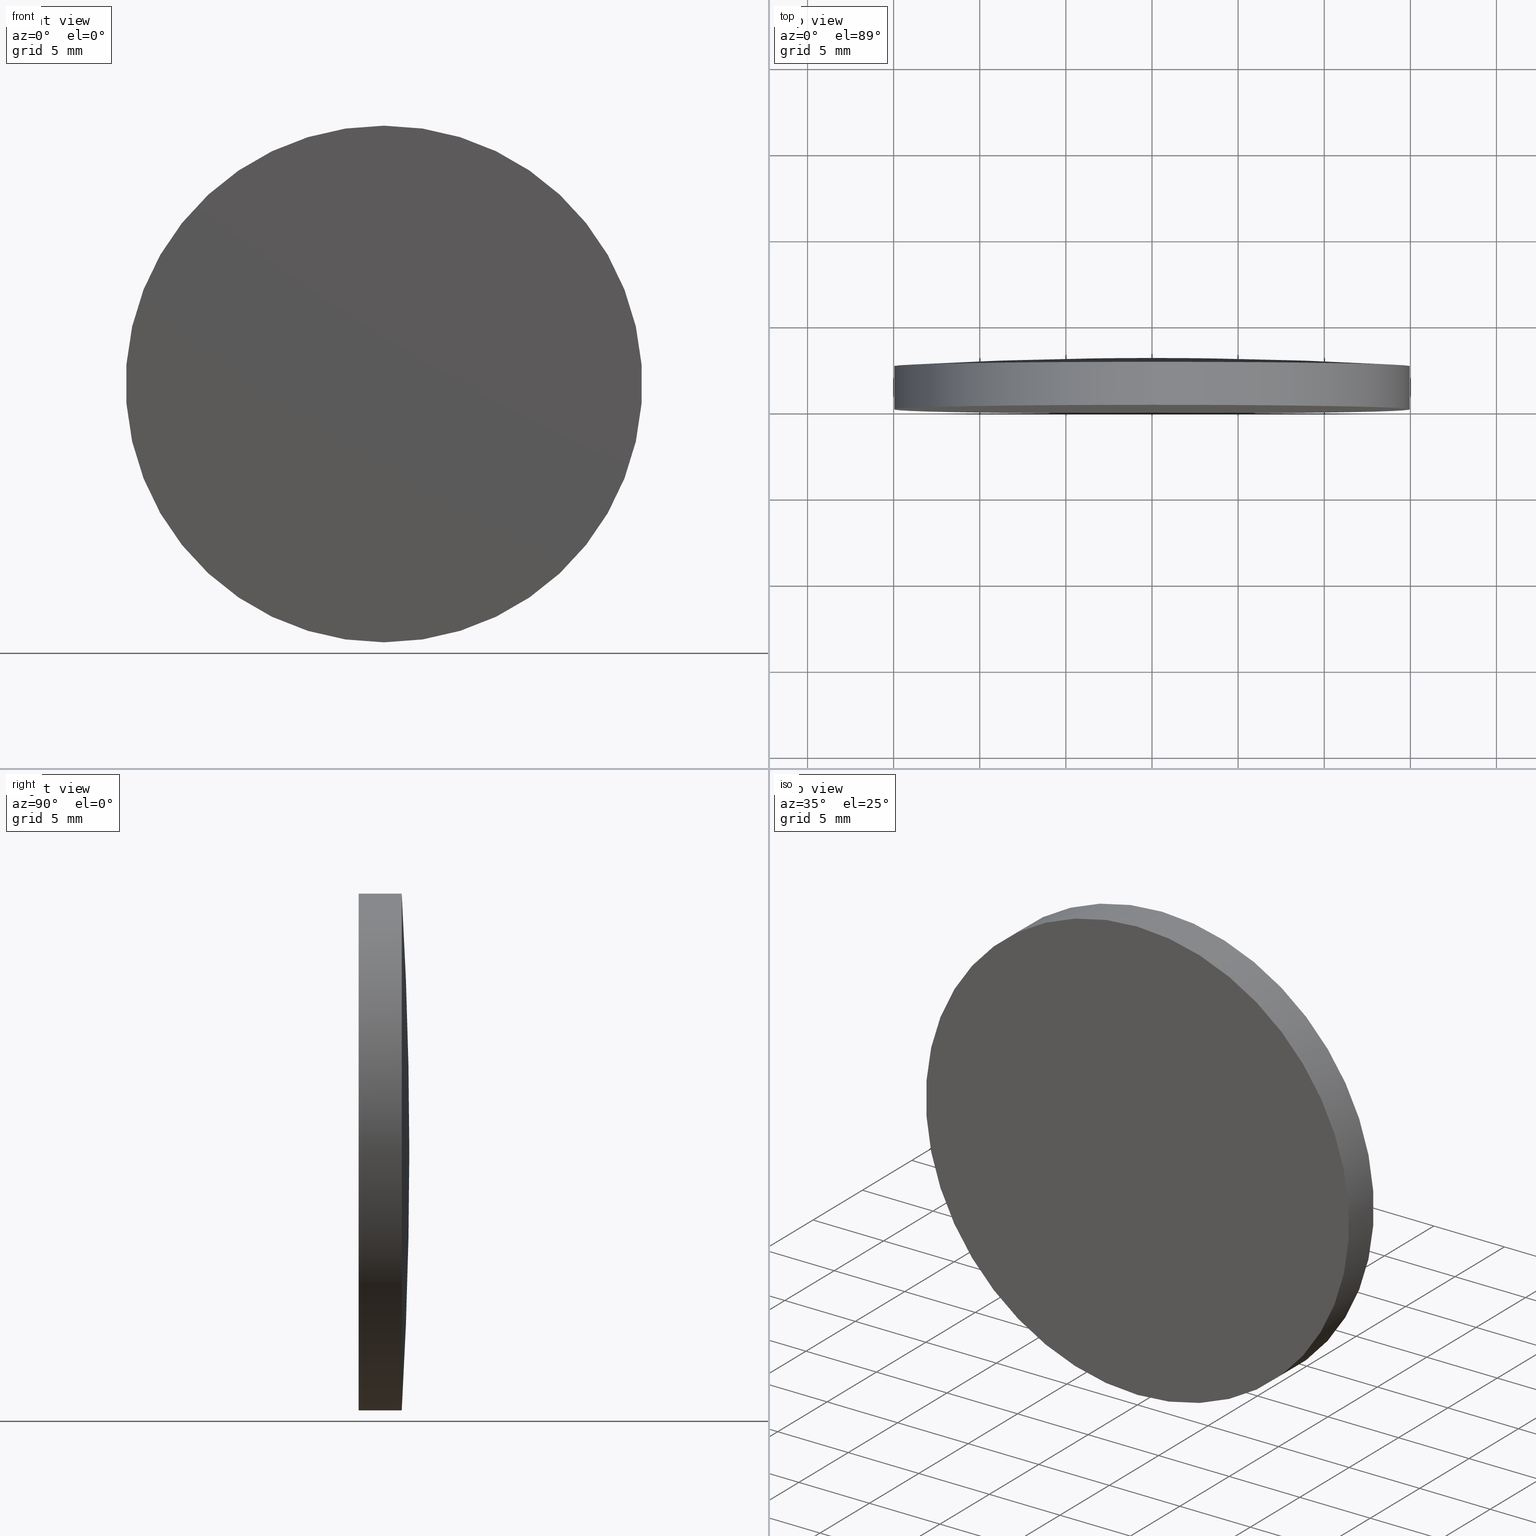
[diagram: canonical four-view strip — front | top / right | iso, engineering-drawing reading convention]
A machine part, canonical four-view strip (front | top / right | iso — engineering-drawing reading convention). The complete STEP part file that produces these views, byte-faithful:
ISO-10303-21;
HEADER;
FILE_DESCRIPTION (( 'STEP AP203' ),
    '1' );
FILE_NAME ('100603.STEP',
    '2024-05-10T02:37:21',
    ( '' ),
    ( '' ),
    'SwSTEP 2.0',
    'SolidWorks 2020',
    '' );
FILE_SCHEMA (( 'CONFIG_CONTROL_DESIGN' ));
ENDSEC;

DATA;
#1 = MECHANICAL_CONTEXT ( 'NONE', #80, 'mechanical' ) ;
#2 = SECURITY_CLASSIFICATION_LEVEL ( 'unclassified' ) ;
#3 = CC_DESIGN_APPROVAL ( #105, ( #161 ) ) ;
#4 = PERSON_AND_ORGANIZATION_ROLE ( 'creator' ) ;
#5 = EDGE_CURVE ( 'NONE', #180, #55, #158, .T. ) ;
#6 = ADVANCED_FACE ( 'NONE', ( #127 ), #183, .T. ) ;
#7 = PRODUCT_DEFINITION_FORMATION_WITH_SPECIFIED_SOURCE ( '�κ�', '', #194, .NOT_KNOWN. ) ;
#8 = DIRECTION ( 'NONE',  ( 0.000000000000000000, 0.000000000000000000, 1.000000000000000000 ) ) ;
#9 = MANIFOLD_SOLID_BREP ( '��ת1', #85 ) ;
#10 = DIRECTION ( 'NONE',  ( -0.000000000000000000, 1.000000000000000000, -0.000000000000000000 ) ) ;
#11 = ORIENTED_EDGE ( 'NONE', *, *, #145, .T. ) ;
#12 = AXIS2_PLACEMENT_3D ( 'NONE', #119, #14, #164 ) ;
#13 = ORIENTED_EDGE ( 'NONE', *, *, #75, .T. ) ;
#14 = DIRECTION ( 'NONE',  ( -0.000000000000000000, 1.000000000000000000, -0.000000000000000000 ) ) ;
#15 = LINE ( 'NONE', #26, #63 ) ;
#16 = PERSON_AND_ORGANIZATION ( #97, #95 ) ;
#17 = CALENDAR_DATE ( 2024, 10, 5 ) ;
#18 = EDGE_CURVE ( 'NONE', #197, #40, #129, .T. ) ;
#19 = COORDINATED_UNIVERSAL_TIME_OFFSET ( 8, 0, .AHEAD. ) ;
#20 = PERSON_AND_ORGANIZATION_ROLE ( 'design_supplier' ) ;
#21 = PERSON_AND_ORGANIZATION ( #97, #95 ) ;
#22 = TOROIDAL_SURFACE ( 'NONE', #59, -0.06682641297565267147, 258.1800000000000068 ) ;
#23 = FACE_OUTER_BOUND ( 'NONE', #107, .T. ) ;
#24 = CIRCLE ( 'NONE', #12, 15.00000000000000000 ) ;
#25 = PLANE ( 'NONE',  #151 ) ;
#26 = CARTESIAN_POINT ( 'NONE',  ( 1.836970198721029589E-15, 2.939999999999999947, -15.00000000000000000 ) ) ;
#27 = CC_DESIGN_PERSON_AND_ORGANIZATION_ASSIGNMENT ( #187, #4, ( #7 ) ) ;
#28 = ORIENTED_EDGE ( 'NONE', *, *, #5, .F. ) ;
#29 = LOCAL_TIME ( 10, 37, 21.00000000000000000, #33 ) ;
#30 = DATE_AND_TIME ( #76, #29 ) ;
#31 = APPROVAL_STATUS ( 'not_yet_approved' ) ;
#32 = SHAPE_DEFINITION_REPRESENTATION ( #172, #173 ) ;
#33 = COORDINATED_UNIVERSAL_TIME_OFFSET ( 8, 0, .AHEAD. ) ;
#34 = CIRCLE ( 'NONE', #77, 15.00000000000000000 ) ;
#35 = PRODUCT_RELATED_PRODUCT_CATEGORY ( 'detail', '', ( #194 ) ) ;
#36 = CARTESIAN_POINT ( 'NONE',  ( 0.000000000000000000, -9.184850993605147944E-16, 0.000000000000000000 ) ) ;
#37 = CC_DESIGN_PERSON_AND_ORGANIZATION_ASSIGNMENT ( #21, #60, ( #43 ) ) ;
#38 = CARTESIAN_POINT ( 'NONE',  ( 1.836970198721009473E-15, 2.500000000000028422, -14.99999999999983302 ) ) ;
#39 = ORIENTED_EDGE ( 'NONE', *, *, #124, .T. ) ;
#40 = VERTEX_POINT ( 'NONE', #65 ) ;
#41 = CARTESIAN_POINT ( 'NONE',  ( 0.000000000000000000, 2.939999999999999947, 0.000000000000000000 ) ) ;
#42 = LINE ( 'NONE', #66, #170 ) ;
#43 = SECURITY_CLASSIFICATION ( '', '', #2 ) ;
#44 = COORDINATED_UNIVERSAL_TIME_OFFSET ( 8, 0, .AHEAD. ) ;
#45 = CALENDAR_DATE ( 2024, 10, 5 ) ;
#46 = EDGE_CURVE ( 'NONE', #67, #180, #24, .T. ) ;
#47 = APPROVAL_ROLE ( '' ) ;
#48 = LOCAL_TIME ( 10, 37, 21.00000000000000000, #115 ) ;
#49 = APPLICATION_CONTEXT ( 'configuration controlled 3d designs of mechanical parts and assemblies' ) ;
#50 = CC_DESIGN_DATE_AND_TIME_ASSIGNMENT ( #169, #116, ( #161 ) ) ;
#51 = DIRECTION ( 'NONE',  ( -0.000000000000000000, 1.000000000000000000, -0.000000000000000000 ) ) ;
#52 = DIRECTION ( 'NONE',  ( 0.000000000000000000, 0.000000000000000000, 1.000000000000000000 ) ) ;
#53 = DIRECTION ( 'NONE',  ( -0.000000000000000000, 1.000000000000000000, -0.000000000000000000 ) ) ;
#54 = CC_DESIGN_SECURITY_CLASSIFICATION ( #43, ( #7 ) ) ;
#55 = VERTEX_POINT ( 'NONE', #165 ) ;
#56 = AXIS2_PLACEMENT_3D ( 'NONE', #71, #83, #176 ) ;
#57 = DIRECTION ( 'NONE',  ( 1.224646799147353207E-16, 0.000000000000000000, -1.000000000000000000 ) ) ;
#58 = APPROVAL_STATUS ( 'not_yet_approved' ) ;
#59 = AXIS2_PLACEMENT_3D ( 'NONE', #182, #51, #73 ) ;
#60 = PERSON_AND_ORGANIZATION_ROLE ( 'classification_officer' ) ;
#61 = DATE_AND_TIME ( #17, #188 ) ;
#62 = DATE_AND_TIME ( #112, #106 ) ;
#63 = VECTOR ( 'NONE', #136, 1000.000000000000000 ) ;
#64 = CC_DESIGN_DATE_AND_TIME_ASSIGNMENT ( #174, #96, ( #43 ) ) ;
#65 = CARTESIAN_POINT ( 'NONE',  ( 0.000000000000000000, -1.734723475976807094E-15, 15.00000000000000000 ) ) ;
#66 = CARTESIAN_POINT ( 'NONE',  ( 0.000000000000000000, 2.939999999999999947, 15.00000000000000000 ) ) ;
#67 = VERTEX_POINT ( 'NONE', #191 ) ;
#68 = EDGE_LOOP ( 'NONE', ( #123, #90 ) ) ;
#69 = ADVANCED_FACE ( 'NONE', ( #155 ), #184, .T. ) ;
#70 = CC_DESIGN_PERSON_AND_ORGANIZATION_ASSIGNMENT ( #141, #160, ( #194 ) ) ;
#71 = CARTESIAN_POINT ( 'NONE',  ( 0.000000000000000000, 2.499999999999998224, 0.000000000000000000 ) ) ;
#72 = AXIS2_PLACEMENT_3D ( 'NONE', #74, #53, #135 ) ;
#73 = DIRECTION ( 'NONE',  ( 0.000000000000000000, 0.000000000000000000, 1.000000000000000000 ) ) ;
#74 = CARTESIAN_POINT ( 'NONE',  ( 0.000000000000000000, 2.939999999999999947, 0.000000000000000000 ) ) ;
#75 = EDGE_CURVE ( 'NONE', #40, #197, #34, .T. ) ;
#76 = CALENDAR_DATE ( 2024, 10, 5 ) ;
#77 = AXIS2_PLACEMENT_3D ( 'NONE', #102, #92, #52 ) ;
#78 = APPROVAL_DATE_TIME ( #61, #190 ) ;
#79 = PERSON_AND_ORGANIZATION ( #97, #95 ) ;
#80 = APPLICATION_CONTEXT ( 'configuration controlled 3d designs of mechanical parts and assemblies' ) ;
#81 = APPROVAL_PERSON_ORGANIZATION ( #16, #105, #47 ) ;
#82 = DIRECTION ( 'NONE',  ( -0.000000000000000000, 1.000000000000000000, -0.000000000000000000 ) ) ;
#83 = DIRECTION ( 'NONE',  ( -0.000000000000000000, 1.000000000000000000, -0.000000000000000000 ) ) ;
#84 = ORIENTED_EDGE ( 'NONE', *, *, #5, .T. ) ;
#85 = CLOSED_SHELL ( 'NONE', ( #69, #185, #181, #99, #6 ) ) ;
#86 = EDGE_CURVE ( 'NONE', #67, #55, #91, .T. ) ;
#87 = EDGE_LOOP ( 'NONE', ( #13, #11, #166, #125 ) ) ;
#88 = EDGE_CURVE ( 'NONE', #40, #67, #42, .T. ) ;
#89 = DIRECTION ( 'NONE',  ( 0.000000000000000000, -1.000000000000000000, 0.000000000000000000 ) ) ;
#90 = ORIENTED_EDGE ( 'NONE', *, *, #18, .F. ) ;
#91 = CIRCLE ( 'NONE', #111, 258.1800000000000068 ) ;
#92 = DIRECTION ( 'NONE',  ( -0.000000000000000000, 1.000000000000000000, -0.000000000000000000 ) ) ;
#93 = PERSON_AND_ORGANIZATION_ROLE ( 'creator' ) ;
#94 = DIRECTION ( 'NONE',  ( 1.000000000000000000, 0.000000000000000000, 0.000000000000000000 ) ) ;
#95 = ORGANIZATION ( 'δָ��', 'δָ��', '' ) ;
#96 = DATE_TIME_ROLE ( 'classification_date' ) ;
#97 = PERSON ( 'δָ��', 'δָ��', 'δָ��', ('δָ��'), ('δָ��'), ('δָ��') ) ;
#98 = APPROVAL_ROLE ( '' ) ;
#99 = ADVANCED_FACE ( 'NONE', ( #175 ), #25, .T. ) ;
#100 = AXIS2_PLACEMENT_3D ( 'NONE', #147, #109, #126 ) ;
#101 = FACE_OUTER_BOUND ( 'NONE', #108, .T. ) ;
#102 = CARTESIAN_POINT ( 'NONE',  ( 0.000000000000000000, -1.734723475976807094E-15, 0.000000000000000000 ) ) ;
#103 = UNCERTAINTY_MEASURE_WITH_UNIT (LENGTH_MEASURE( 1.000000000000000082E-05 ), #178, 'distance_accuracy_value', 'NONE');
#104 = ORIENTED_EDGE ( 'NONE', *, *, #88, .T. ) ;
#105 = APPROVAL ( #159, 'δָ��' ) ;
#106 = LOCAL_TIME ( 10, 37, 21.00000000000000000, #44 ) ;
#107 = EDGE_LOOP ( 'NONE', ( #28, #39, #196 ) ) ;
#108 = EDGE_LOOP ( 'NONE', ( #179, #84, #195 ) ) ;
#109 = DIRECTION ( 'NONE',  ( -0.000000000000000000, 1.000000000000000000, -0.000000000000000000 ) ) ;
#110 = CARTESIAN_POINT ( 'NONE',  ( -8.183875274913219801E-18, -255.2399913514417733, 0.06682641297565267147 ) ) ;
#111 = AXIS2_PLACEMENT_3D ( 'NONE', #140, #120, #148 ) ;
#112 = CALENDAR_DATE ( 2024, 10, 5 ) ;
#113 = APPLICATION_PROTOCOL_DEFINITION ( 'international standard', 'config_control_design', 1994, #49 ) ;
#114 = AXIS2_PLACEMENT_3D ( 'NONE', #199, #201, #192 ) ;
#115 = COORDINATED_UNIVERSAL_TIME_OFFSET ( 8, 0, .AHEAD. ) ;
#116 = DATE_TIME_ROLE ( 'creation_date' ) ;
#117 = CC_DESIGN_PERSON_AND_ORGANIZATION_ASSIGNMENT ( #157, #20, ( #7 ) ) ;
#118 = LOCAL_TIME ( 10, 37, 21.00000000000000000, #130 ) ;
#119 = CARTESIAN_POINT ( 'NONE',  ( 0.000000000000000000, 2.499999999999998224, 0.000000000000000000 ) ) ;
#120 = DIRECTION ( 'NONE',  ( -1.000000000000000000, 0.000000000000000000, 0.000000000000000000 ) ) ;
#121 = AXIS2_PLACEMENT_3D ( 'NONE', #110, #200, #57 ) ;
#122 = CARTESIAN_POINT ( 'NONE',  ( 1.836970198721029589E-15, -1.734723475976807094E-15, -15.00000000000000000 ) ) ;
#123 = ORIENTED_EDGE ( 'NONE', *, *, #75, .F. ) ;
#124 = EDGE_CURVE ( 'NONE', #180, #67, #198, .T. ) ;
#125 = ORIENTED_EDGE ( 'NONE', *, *, #88, .F. ) ;
#126 = DIRECTION ( 'NONE',  ( 0.000000000000000000, 0.000000000000000000, 1.000000000000000000 ) ) ;
#127 = FACE_OUTER_BOUND ( 'NONE', #137, .T. ) ;
#128 = APPROVAL_DATE_TIME ( #30, #105 ) ;
#129 = CIRCLE ( 'NONE', #100, 15.00000000000000000 ) ;
#130 = COORDINATED_UNIVERSAL_TIME_OFFSET ( 8, 0, .AHEAD. ) ;
#131 = DIRECTION ( 'NONE',  ( 0.000000000000000000, 0.000000000000000000, 1.000000000000000000 ) ) ;
#132 =( GEOMETRIC_REPRESENTATION_CONTEXT ( 3 ) GLOBAL_UNCERTAINTY_ASSIGNED_CONTEXT ( ( #103 ) ) GLOBAL_UNIT_ASSIGNED_CONTEXT ( ( #178, #152, #153 ) ) REPRESENTATION_CONTEXT ( 'NONE', 'WORKASPACE' ) );
#133 = APPROVAL_PERSON_ORGANIZATION ( #168, #190, #98 ) ;
#134 = CC_DESIGN_PERSON_AND_ORGANIZATION_ASSIGNMENT ( #156, #93, ( #161 ) ) ;
#135 = DIRECTION ( 'NONE',  ( 0.000000000000000000, 0.000000000000000000, 1.000000000000000000 ) ) ;
#136 = DIRECTION ( 'NONE',  ( -0.000000000000000000, 1.000000000000000000, -0.000000000000000000 ) ) ;
#137 = EDGE_LOOP ( 'NONE', ( #139, #138, #104, #193 ) ) ;
#138 = ORIENTED_EDGE ( 'NONE', *, *, #18, .T. ) ;
#139 = ORIENTED_EDGE ( 'NONE', *, *, #145, .F. ) ;
#140 = CARTESIAN_POINT ( 'NONE',  ( 0.000000000000000000, -255.2399913514417733, -0.06682641297565267147 ) ) ;
#141 = PERSON_AND_ORGANIZATION ( #97, #95 ) ;
#142 = CALENDAR_DATE ( 2024, 10, 5 ) ;
#143 = APPROVAL_DATE_TIME ( #62, #149 ) ;
#144 = CC_DESIGN_APPROVAL ( #190, ( #43 ) ) ;
#145 = EDGE_CURVE ( 'NONE', #197, #180, #15, .T. ) ;
#146 = AXIS2_PLACEMENT_3D ( 'NONE', #41, #82, #8 ) ;
#147 = CARTESIAN_POINT ( 'NONE',  ( 0.000000000000000000, -1.734723475976807094E-15, 0.000000000000000000 ) ) ;
#148 = DIRECTION ( 'NONE',  ( 0.000000000000000000, 0.000000000000000000, 1.000000000000000000 ) ) ;
#149 = APPROVAL ( #58, 'δָ��' ) ;
#150 = DESIGN_CONTEXT ( 'detailed design', #49, 'design' ) ;
#151 = AXIS2_PLACEMENT_3D ( 'NONE', #36, #89, #162 ) ;
#152 =( NAMED_UNIT ( * ) PLANE_ANGLE_UNIT ( ) SI_UNIT ( $, .RADIAN. ) );
#153 =( NAMED_UNIT ( * ) SI_UNIT ( $, .STERADIAN. ) SOLID_ANGLE_UNIT ( ) );
#154 = AXIS2_PLACEMENT_3D ( 'NONE', #189, #131, #94 ) ;
#155 = FACE_OUTER_BOUND ( 'NONE', #87, .T. ) ;
#156 = PERSON_AND_ORGANIZATION ( #97, #95 ) ;
#157 = PERSON_AND_ORGANIZATION ( #97, #95 ) ;
#158 = CIRCLE ( 'NONE', #121, 258.1800000000000068 ) ;
#159 = APPROVAL_STATUS ( 'not_yet_approved' ) ;
#160 = PERSON_AND_ORGANIZATION_ROLE ( 'design_owner' ) ;
#161 = PRODUCT_DEFINITION ( 'δ֪', '', #7, #150 ) ;
#162 = DIRECTION ( 'NONE',  ( 0.000000000000000000, -0.000000000000000000, -1.000000000000000000 ) ) ;
#163 = TOROIDAL_SURFACE ( 'NONE', #114, -0.06682641297565267147, 258.1800000000000068 ) ;
#164 = DIRECTION ( 'NONE',  ( 0.000000000000000000, 0.000000000000000000, 1.000000000000000000 ) ) ;
#165 = CARTESIAN_POINT ( 'NONE',  ( 0.000000000000000000, 2.939999999999999947, 0.000000000000000000 ) ) ;
#166 = ORIENTED_EDGE ( 'NONE', *, *, #46, .F. ) ;
#167 = APPLICATION_PROTOCOL_DEFINITION ( 'international standard', 'config_control_design', 1994, #80 ) ;
#168 = PERSON_AND_ORGANIZATION ( #97, #95 ) ;
#169 = DATE_AND_TIME ( #142, #48 ) ;
#170 = VECTOR ( 'NONE', #10, 1000.000000000000000 ) ;
#171 = CC_DESIGN_APPROVAL ( #149, ( #7 ) ) ;
#172 = PRODUCT_DEFINITION_SHAPE ( 'NONE', 'NONE',  #161 ) ;
#173 = ADVANCED_BREP_SHAPE_REPRESENTATION ( '100603', ( #9, #154 ), #132 ) ;
#174 = DATE_AND_TIME ( #45, #118 ) ;
#175 = FACE_OUTER_BOUND ( 'NONE', #68, .T. ) ;
#176 = DIRECTION ( 'NONE',  ( 0.000000000000000000, 0.000000000000000000, 1.000000000000000000 ) ) ;
#177 = APPROVAL_PERSON_ORGANIZATION ( #79, #149, #186 ) ;
#178 =( LENGTH_UNIT ( ) NAMED_UNIT ( * ) SI_UNIT ( .MILLI., .METRE. ) );
#179 = ORIENTED_EDGE ( 'NONE', *, *, #46, .T. ) ;
#180 = VERTEX_POINT ( 'NONE', #38 ) ;
#181 = ADVANCED_FACE ( 'NONE', ( #23 ), #163, .T. ) ;
#182 = CARTESIAN_POINT ( 'NONE',  ( 0.000000000000000000, -255.2399913514417733, 0.000000000000000000 ) ) ;
#183 = CYLINDRICAL_SURFACE ( 'NONE', #146, 15.00000000000000000 ) ;
#184 = CYLINDRICAL_SURFACE ( 'NONE', #72, 15.00000000000000000 ) ;
#185 = ADVANCED_FACE ( 'NONE', ( #101 ), #22, .T. ) ;
#186 = APPROVAL_ROLE ( '' ) ;
#187 = PERSON_AND_ORGANIZATION ( #97, #95 ) ;
#188 = LOCAL_TIME ( 10, 37, 21.00000000000000000, #19 ) ;
#189 = CARTESIAN_POINT ( 'NONE',  ( 0.000000000000000000, 0.000000000000000000, 0.000000000000000000 ) ) ;
#190 = APPROVAL ( #31, 'δָ��' ) ;
#191 = CARTESIAN_POINT ( 'NONE',  ( 0.000000000000000000, 2.500000000000028422, 14.99999999999983302 ) ) ;
#192 = DIRECTION ( 'NONE',  ( 0.000000000000000000, 0.000000000000000000, 1.000000000000000000 ) ) ;
#193 = ORIENTED_EDGE ( 'NONE', *, *, #124, .F. ) ;
#194 = PRODUCT ( '100603', '100603', '', ( #1 ) ) ;
#195 = ORIENTED_EDGE ( 'NONE', *, *, #86, .F. ) ;
#196 = ORIENTED_EDGE ( 'NONE', *, *, #86, .T. ) ;
#197 = VERTEX_POINT ( 'NONE', #122 ) ;
#198 = CIRCLE ( 'NONE', #56, 15.00000000000000000 ) ;
#199 = CARTESIAN_POINT ( 'NONE',  ( 0.000000000000000000, -255.2399913514417733, 0.000000000000000000 ) ) ;
#200 = DIRECTION ( 'NONE',  ( 1.000000000000000000, 0.000000000000000000, 1.224646799147353207E-16 ) ) ;
#201 = DIRECTION ( 'NONE',  ( -0.000000000000000000, 1.000000000000000000, -0.000000000000000000 ) ) ;
ENDSEC;
END-ISO-10303-21;
